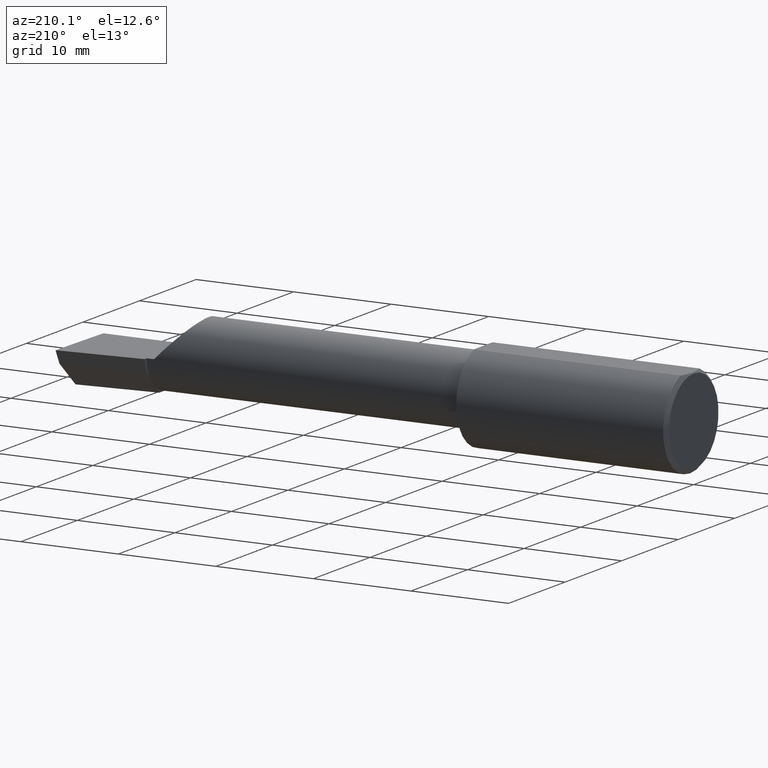
[diagram: clean part render]
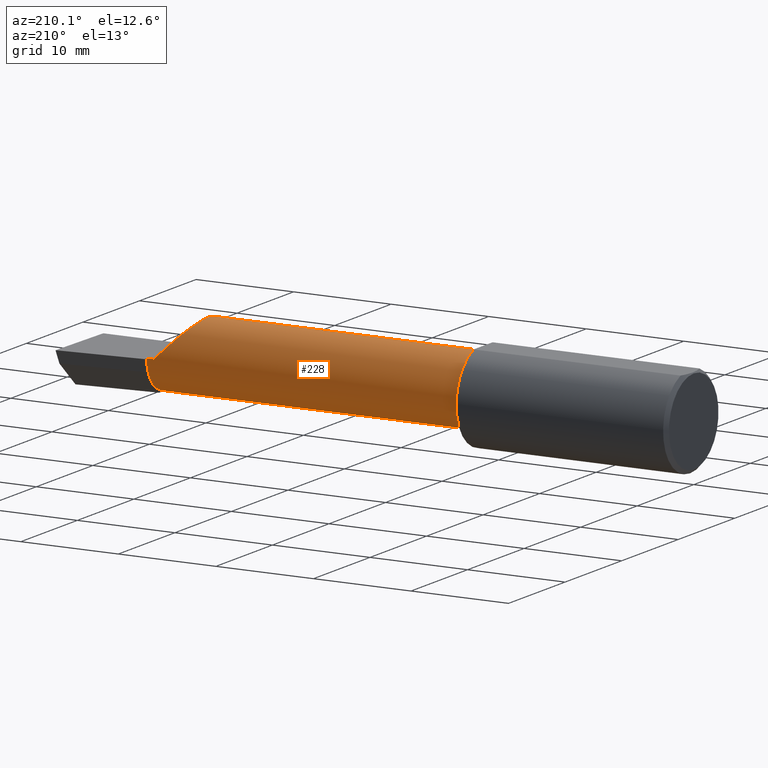
[diagram: same view with one face highlighted and labeled with its STEP entity id]
A machine part, auxiliary view. The second image highlights one B-rep face of the part: STEP entity #228.
In plain terms, the highlighted cylindrical surface (partial cylindrical patch) has radius 3.5573 mm, axis along (-1, -0, -0).
Its self-contained STEP definition (entity closure, byte-faithful):
#8 = CARTESIAN_POINT ( 'NONE',  ( 0.8750000000000002220, -0.1635956445993032027, -0.09130436773856145938 ) ) ;
#9 = CARTESIAN_POINT ( 'NONE',  ( 2.477873865042410806, -0.05739999999999999963, -0.1400500000000000633 ) ) ;
#11 = VERTEX_POINT ( 'NONE', #532 ) ;
#18 = ORIENTED_EDGE ( 'NONE', *, *, #412, .T. ) ;
#22 = ORIENTED_EDGE ( 'NONE', *, *, #488, .F. ) ;
#27 = DIRECTION ( 'NONE',  ( 1.000000000000000000, 6.829619984160658046E-18, 0.000000000000000000 ) ) ;
#36 = DIRECTION ( 'NONE',  ( 0.000000000000000000, -1.000000000000000000, 0.000000000000000000 ) ) ;
#41 = CARTESIAN_POINT ( 'NONE',  ( 0.8750000000000002220, -0.1635956445993029529, 0.09130436773856175081 ) ) ;
#42 = EDGE_CURVE ( 'NONE', #593, #628, #281, .T. ) ;
#47 = VERTEX_POINT ( 'NONE', #428 ) ;
#55 = ORIENTED_EDGE ( 'NONE', *, *, #129, .F. ) ;
#60 = CARTESIAN_POINT ( 'NONE',  ( 2.481080296960508580, -0.1635956445993030639, -0.09130436773856169530 ) ) ;
#64 = CARTESIAN_POINT ( 'NONE',  ( 2.129999999999999893, 0.08264999999999983471, 1.065442715258197396E-16 ) ) ;
#69 = VERTEX_POINT ( 'NONE', #8 ) ;
#72 = VECTOR ( 'NONE', #103, 39.37007874015748143 ) ;
#91 = CARTESIAN_POINT ( 'NONE',  ( 2.160000000000000142, -0.05739999999999999963, 0.000000000000000000 ) ) ;
#98 = CIRCLE ( 'NONE', #231, 0.1400500000000000356 ) ;
#103 = DIRECTION ( 'NONE',  ( -1.000000000000000000, 5.691349986800549142E-18, -0.000000000000000000 ) ) ;
#104 = CARTESIAN_POINT ( 'NONE',  ( 2.038695632261437130, -0.1635956445993029529, 0.09130436773856188959 ) ) ;
#107 = CARTESIAN_POINT ( 'NONE',  ( 2.481080296960508580, -0.1635956445993030639, -0.09130436773856169530 ) ) ;
#108 = EDGE_CURVE ( 'NONE', #444, #69, #514, .T. ) ;
#110 = DIRECTION ( 'NONE',  ( -1.000000000000000000, -6.829619984160658046E-18, -0.000000000000000000 ) ) ;
#115 =( BOUNDED_CURVE ( )  B_SPLINE_CURVE ( 3, ( #400, #594, #548, #535 ),
 .UNSPECIFIED., .F., .F. ) 
 B_SPLINE_CURVE_WITH_KNOTS ( ( 4, 4 ),
 ( 5.422530673488458852, 7.853981633974482790 ),
 .UNSPECIFIED. ) 
 CURVE ( )  GEOMETRIC_REPRESENTATION_ITEM ( )  RATIONAL_B_SPLINE_CURVE ( ( 1.000000000000000000, 0.5651045289226863666, 0.5651045289226863666, 1.000000000000000000 ) ) 
 REPRESENTATION_ITEM ( '' )  );
#129 = EDGE_CURVE ( 'NONE', #240, #47, #349, .T. ) ;
#134 = EDGE_CURVE ( 'NONE', #507, #593, #115, .T. ) ;
#144 = ORIENTED_EDGE ( 'NONE', *, *, #376, .T. ) ;
#154 = CARTESIAN_POINT ( 'NONE',  ( 0.8750000000000002220, -0.05740000000000000657, 0.000000000000000000 ) ) ;
#174 = DIRECTION ( 'NONE',  ( 6.829619984160658816E-18, -1.000000000000000000, 0.000000000000000000 ) ) ;
#177 = CARTESIAN_POINT ( 'NONE',  ( 2.160000000000000142, -0.05739999999999999963, 0.000000000000000000 ) ) ;
#194 = DIRECTION ( 'NONE',  ( 1.000000000000000000, 6.829619984160658046E-18, 0.000000000000000000 ) ) ;
#207 = ORIENTED_EDGE ( 'NONE', *, *, #134, .T. ) ;
#215 = FACE_OUTER_BOUND ( 'NONE', #241, .T. ) ;
#216 = CARTESIAN_POINT ( 'NONE',  ( 2.476787929832031221, -0.09887019258091189755, -0.1400500000000000078 ) ) ;
#219 = DIRECTION ( 'NONE',  ( 1.000000000000000000, 6.829619984160658046E-18, 0.000000000000000000 ) ) ;
#228 = ADVANCED_FACE ( 'NONE', ( #215 ), #466, .T. ) ;
#231 = AXIS2_PLACEMENT_3D ( 'NONE', #445, #301, #542 ) ;
#236 = AXIS2_PLACEMENT_3D ( 'NONE', #154, #110, #538 ) ;
#237 = DIRECTION ( 'NONE',  ( -1.000000000000000000, -6.829619984160658046E-18, -0.000000000000000000 ) ) ;
#238 = ORIENTED_EDGE ( 'NONE', *, *, #531, .T. ) ;
#240 = VERTEX_POINT ( 'NONE', #273 ) ;
#241 = EDGE_LOOP ( 'NONE', ( #22, #18, #480, #351, #207, #572, #238, #527, #144, #55 ) ) ;
#242 = CARTESIAN_POINT ( 'NONE',  ( 1.517500000000000071, -0.1635956445993030639, -0.09130436773856169530 ) ) ;
#259 = CARTESIAN_POINT ( 'NONE',  ( 2.477925907309857401, -0.1365595166907236646, -0.1227499502647107360 ) ) ;
#264 = EDGE_CURVE ( 'NONE', #435, #11, #426, .T. ) ;
#265 = AXIS2_PLACEMENT_3D ( 'NONE', #464, #471, #174 ) ;
#268 = LINE ( 'NONE', #312, #282 ) ;
#273 = CARTESIAN_POINT ( 'NONE',  ( 2.477873865042410806, -0.05739999999999999963, -0.1400500000000000633 ) ) ;
#275 = DIRECTION ( 'NONE',  ( 0.000000000000000000, -1.000000000000000000, -1.776356839400250465E-15 ) ) ;
#276 = EDGE_CURVE ( 'NONE', #444, #507, #268, .T. ) ;
#281 = LINE ( 'NONE', #383, #573 ) ;
#282 = VECTOR ( 'NONE', #27, 39.37007874015748143 ) ;
#301 = DIRECTION ( 'NONE',  ( -1.000000000000000000, -6.829619984160658046E-18, -0.000000000000000000 ) ) ;
#312 = CARTESIAN_POINT ( 'NONE',  ( 1.517500000000000071, -0.1635956445993030639, 0.09130436773856169530 ) ) ;
#349 = LINE ( 'NONE', #407, #72 ) ;
#351 = ORIENTED_EDGE ( 'NONE', *, *, #276, .T. ) ;
#372 = CARTESIAN_POINT ( 'NONE',  ( 2.160000000000000142, 0.08265000000000004288, 3.267291166268306182E-16 ) ) ;
#376 = EDGE_CURVE ( 'NONE', #435, #47, #517, .T. ) ;
#383 = CARTESIAN_POINT ( 'NONE',  ( -9.564882787816662316E-19, 0.08264999999999995961, 3.267291166268304703E-16 ) ) ;
#394 = LINE ( 'NONE', #242, #449 ) ;
#400 = CARTESIAN_POINT ( 'NONE',  ( 2.038695632261437130, -0.1635956445993029529, 0.09130436773856188959 ) ) ;
#407 = CARTESIAN_POINT ( 'NONE',  ( 2.500000000000000000, -0.05739999999999999963, -0.1400500000000000633 ) ) ;
#412 = EDGE_CURVE ( 'NONE', #577, #69, #394, .T. ) ;
#418 = AXIS2_PLACEMENT_3D ( 'NONE', #177, #219, #275 ) ;
#420 =( BOUNDED_CURVE ( )  B_SPLINE_CURVE ( 3, ( #60, #259, #216, #9 ),
 .UNSPECIFIED., .F., .F. ) 
 B_SPLINE_CURVE_WITH_KNOTS ( ( 4, 4 ),
 ( 5.632580117768154260, 6.493234751459282528 ),
 .UNSPECIFIED. ) 
 CURVE ( )  GEOMETRIC_REPRESENTATION_ITEM ( )  RATIONAL_B_SPLINE_CURVE ( ( 1.000000000000000000, 0.9392195014330942948, 0.9392195014330942948, 1.000000000000000000 ) ) 
 REPRESENTATION_ITEM ( '' )  );
#426 = CIRCLE ( 'NONE', #418, 0.1400499999999999801 ) ;
#428 = CARTESIAN_POINT ( 'NONE',  ( 2.160000000000000142, -0.05739999999999999963, -0.1400500000000000633 ) ) ;
#435 = VERTEX_POINT ( 'NONE', #485 ) ;
#444 = VERTEX_POINT ( 'NONE', #41 ) ;
#445 = CARTESIAN_POINT ( 'NONE',  ( 2.160000000000000142, -0.05739999999999999963, 0.000000000000000000 ) ) ;
#449 = VECTOR ( 'NONE', #582, 39.37007874015748143 ) ;
#464 = CARTESIAN_POINT ( 'NONE',  ( 0.000000000000000000, -0.05740000000000001351, 0.000000000000000000 ) ) ;
#466 = CYLINDRICAL_SURFACE ( 'NONE', #265, 0.1400499999999999801 ) ;
#471 = DIRECTION ( 'NONE',  ( -1.000000000000000000, -6.829619984160658046E-18, -0.000000000000000000 ) ) ;
#480 = ORIENTED_EDGE ( 'NONE', *, *, #108, .F. ) ;
#485 = CARTESIAN_POINT ( 'NONE',  ( 2.160000000000000142, 0.01441505128072288582, -0.1202356058309980713 ) ) ;
#488 = EDGE_CURVE ( 'NONE', #577, #240, #420, .T. ) ;
#507 = VERTEX_POINT ( 'NONE', #104 ) ;
#514 = CIRCLE ( 'NONE', #236, 0.1400499999999999245 ) ;
#517 = CIRCLE ( 'NONE', #566, 0.1400500000000000356 ) ;
#527 = ORIENTED_EDGE ( 'NONE', *, *, #264, .F. ) ;
#531 = EDGE_CURVE ( 'NONE', #628, #11, #98, .T. ) ;
#532 = CARTESIAN_POINT ( 'NONE',  ( 2.160000000000000142, 0.06495571228477951820, -0.06814016562413281741 ) ) ;
#535 = CARTESIAN_POINT ( 'NONE',  ( 2.129999999999999893, 0.08264999999999983471, 1.065442715258197396E-16 ) ) ;
#538 = DIRECTION ( 'NONE',  ( 0.000000000000000000, -1.000000000000000000, 0.000000000000000000 ) ) ;
#542 = DIRECTION ( 'NONE',  ( 0.000000000000000000, -1.000000000000000000, 0.000000000000000000 ) ) ;
#548 = CARTESIAN_POINT ( 'NONE',  ( 1.975085956200449022, 0.08264999999999997349, 0.1549140437995493169 ) ) ;
#566 = AXIS2_PLACEMENT_3D ( 'NONE', #91, #237, #36 ) ;
#572 = ORIENTED_EDGE ( 'NONE', *, *, #42, .T. ) ;
#573 = VECTOR ( 'NONE', #194, 39.37007874015748143 ) ;
#577 = VERTEX_POINT ( 'NONE', #107 ) ;
#582 = DIRECTION ( 'NONE',  ( -1.000000000000000000, -6.829619984160658046E-18, -0.000000000000000000 ) ) ;
#593 = VERTEX_POINT ( 'NONE', #64 ) ;
#594 = CARTESIAN_POINT ( 'NONE',  ( 1.921229036482944075, -0.06260079402492431389, 0.2087709635170537925 ) ) ;
#628 = VERTEX_POINT ( 'NONE', #372 ) ;